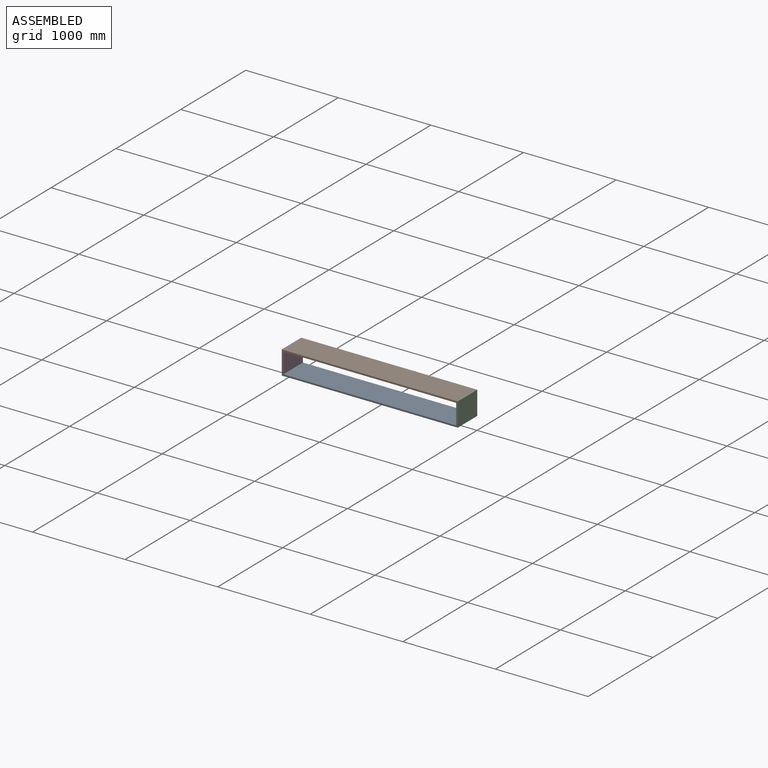
[diagram: assembled view]
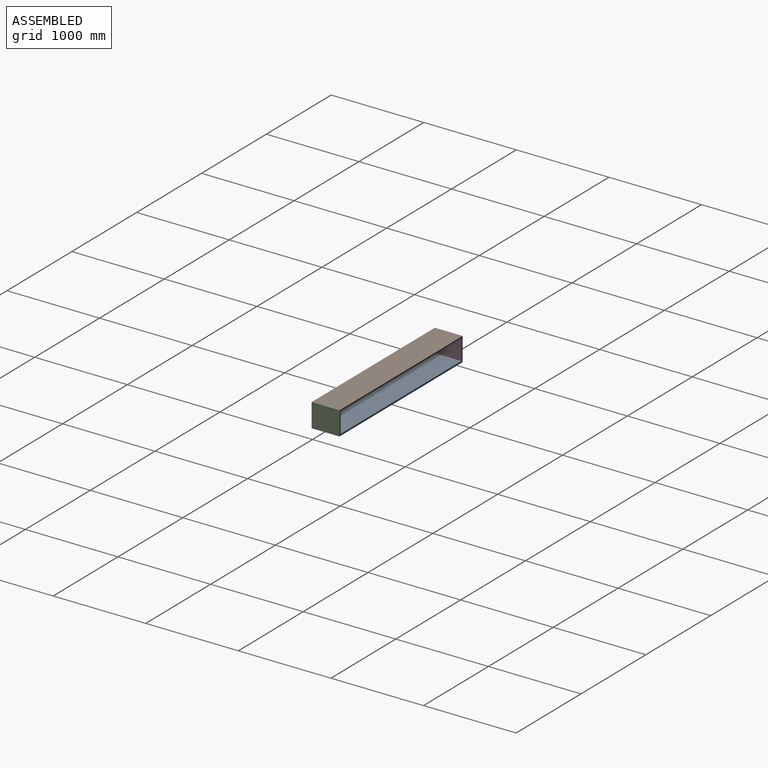
[diagram: assembled view, second angle]
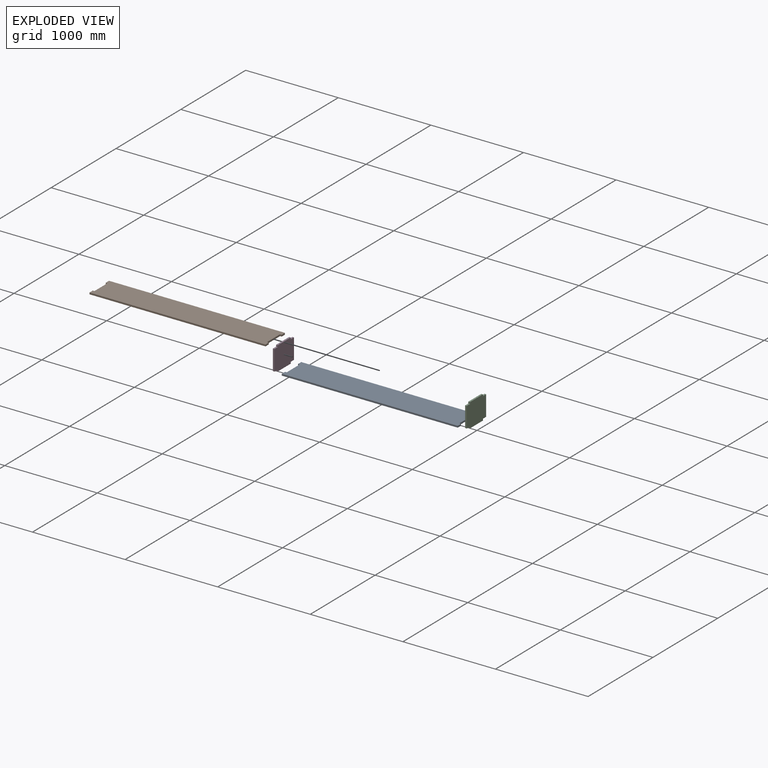
[diagram: exploded view]
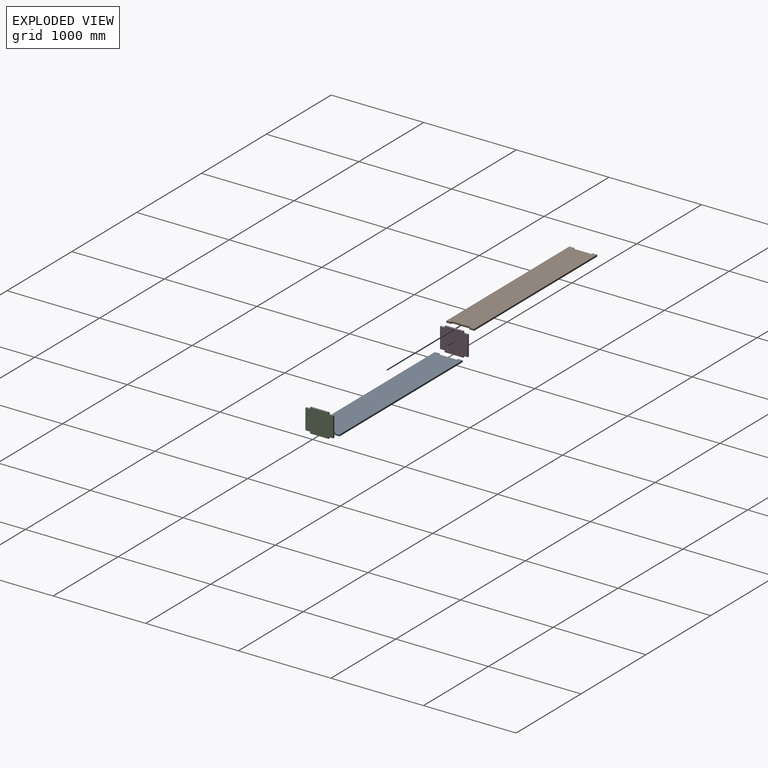
[diagram: exploded view, second angle]
ASSEMBLY  parts=4 mates=3
PART A: 14 faces, bbox 1900x300x18 mm
  f0: plane 1900x18mm, normal (0,1,0), area 34200mm2, adj f1,f11,f12,f13
  f1: plane 50x18mm, normal (-1,0,0), area 900mm2, adj f0,f2,f12,f13
  f2: plane 18x18mm, normal (0,-1,0), area 324mm2, adj f1,f3,f12,f13
  f3: plane 200x18mm, normal (-1,0,0), area 3600mm2, adj f2,f4,f12,f13
  f4: plane 18x18mm, normal (0,1,0), area 324mm2, adj f3,f5,f12,f13
  f5: plane 50x18mm, normal (-1,0,0), area 900mm2, adj f4,f6,f12,f13
  f6: plane 1900x18mm, normal (0,-1,0), area 34200mm2, adj f5,f7,f12,f13
  f7: plane 50x18mm, normal (1,0,0), area 900mm2, adj f6,f8,f12,f13
  f8: plane 18x18mm, normal (0,1,0), area 324mm2, adj f7,f9,f12,f13
  f9: plane 200x18mm, normal (1,0,0), area 3600mm2, adj f8,f10,f12,f13
  f10: plane 18x18mm, normal (0,-1,0), area 324mm2, adj f9,f11,f12,f13
  f11: plane 50x18mm, normal (1,0,0), area 900mm2, adj f0,f10,f12,f13
  f12: plane 1900x300mm, normal (0,0,1), area 562800mm2, adj f0,f1,f2,f3,f4,f5,f6,f7
  f13: plane 1900x300mm, normal (0,0,-1), area 562800mm2, adj f0,f1,f2,f3,f4,f5,f6,f7
PART B: same geometry as A
PART C: 14 faces, bbox 18x300x256 mm
  f0: plane 18x18mm, normal (0,1,0), area 324mm2, adj f1,f11,f12,f13
  f1: plane 200x18mm, normal (0,0,1), area 3600mm2, adj f0,f2,f12,f13
  f2: plane 18x18mm, normal (0,-1,0), area 324mm2, adj f1,f3,f12,f13
  f3: plane 50x18mm, normal (0,0,1), area 900mm2, adj f2,f4,f12,f13
  f4: plane 220x18mm, normal (0,-1,0), area 3960mm2, adj f3,f5,f12,f13
  f5: plane 50x18mm, normal (0,0,-1), area 900mm2, adj f4,f6,f12,f13
  f6: plane 18x18mm, normal (0,-1,0), area 324mm2, adj f5,f7,f12,f13
  f7: plane 200x18mm, normal (0,0,-1), area 3600mm2, adj f6,f8,f12,f13
  f8: plane 18x18mm, normal (0,1,0), area 324mm2, adj f7,f9,f12,f13
  f9: plane 50x18mm, normal (0,0,-1), area 900mm2, adj f8,f10,f12,f13
  f10: plane 220x18mm, normal (0,1,0), area 3960mm2, adj f9,f11,f12,f13
  f11: plane 50x18mm, normal (0,0,1), area 900mm2, adj f0,f10,f12,f13
  f12: plane 300x256mm, normal (1,0,0), area 73200mm2, adj f0,f1,f2,f3,f4,f5,f6,f7
  f13: plane 300x256mm, normal (-1,0,0), area 73200mm2, adj f0,f1,f2,f3,f4,f5,f6,f7
PART D: same geometry as C
PLACE A t=(-35.59,-103.68,-124.7)mm fixed
PLACE B t=(-35.59,-103.68,113.3)mm
PLACE C t=(1846.41,196.32,-124.7)mm
PLACE D t=(-35.59,196.32,-124.7)mm
MATE fastened D.f13 <-> A.f5  axis (-1,0,0) through (-35.59,-53.68,-106.7)mm
MATE fastened C.f12 <-> A.f7  axis (1,0,0) through (1864.41,-53.68,-106.7)mm
MATE fastened D.f13 <-> B.f5  axis (-1,0,0) through (-35.59,-53.68,113.3)mm
